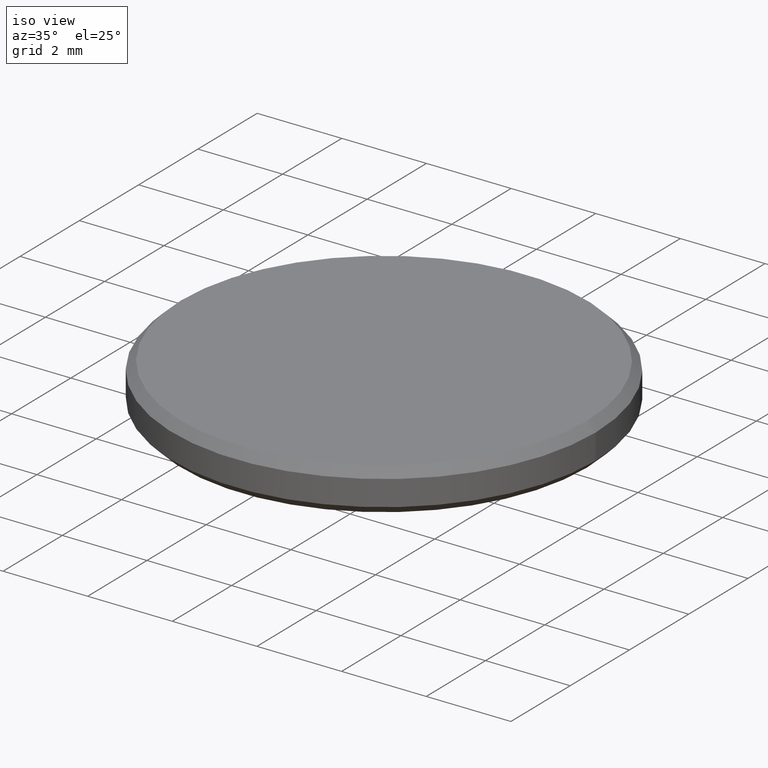
[diagram: clean part render]
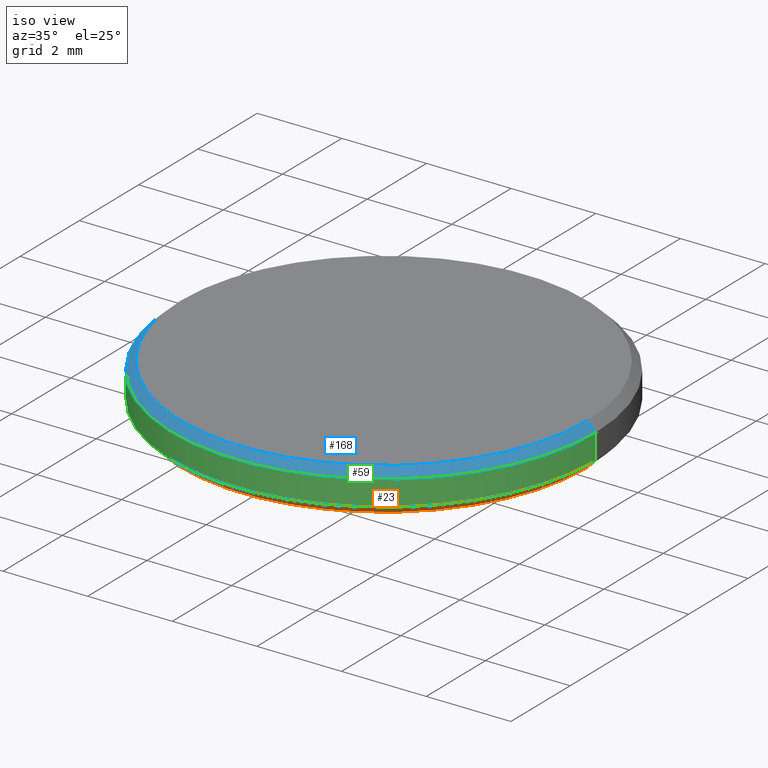
[diagram: same view with three faces highlighted in distinct colors, each labeled with its STEP entity id]
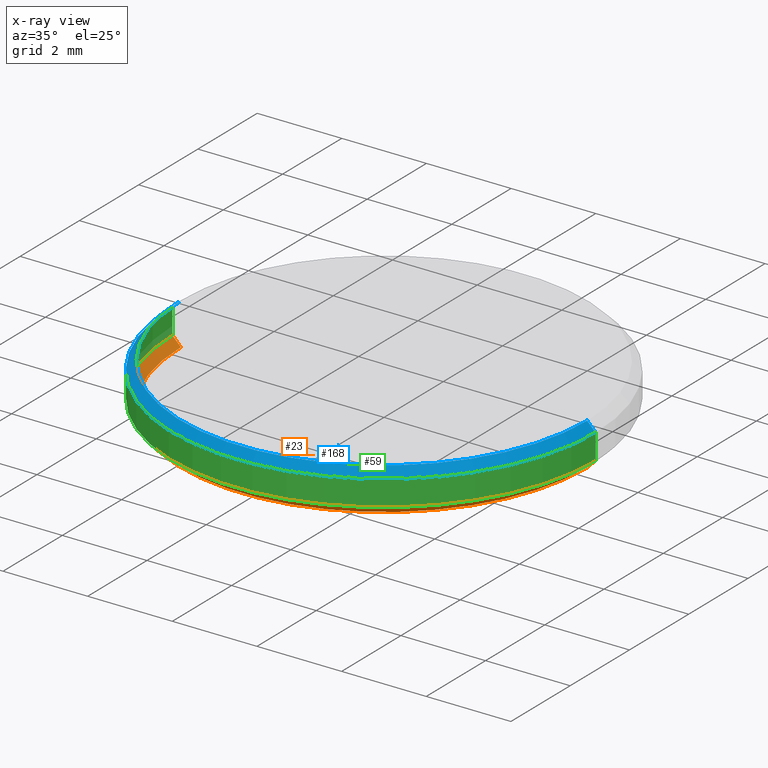
[diagram: x-ray of the same camera — body ghosted, the three highlighted faces saturated]
A machine part, iso view with three faces highlighted in distinct colors.
The next image is the same camera in x-ray (body ghosted, the three faces saturated) — at least one of them is partly hidden behind the body in this view.
Their STEP definitions:

[orange] entity #23 — the highlighted conical surface has half-angle 45 deg.
#1 = VERTEX_POINT ( 'NONE', #119 ) ;
#6 = VERTEX_POINT ( 'NONE', #97 ) ;
#23 = ADVANCED_FACE ( 'NONE', ( #138 ), #40, .T. ) ;
#25 = DIRECTION ( 'NONE',  ( -0.000000000000000000, -0.000000000000000000, 1.000000000000000000 ) ) ;
#26 = AXIS2_PLACEMENT_3D ( 'NONE', #157, #139, #235 ) ;
#36 = ORIENTED_EDGE ( 'NONE', *, *, #135, .F. ) ;
#39 = VECTOR ( 'NONE', #126, 1000.000000000000000 ) ;
#40 = CONICAL_SURFACE ( 'NONE', #116, 5.000000000000000000, 0.7853981633974503884 ) ;
#45 = CARTESIAN_POINT ( 'NONE',  ( 0.000000000000000000, 0.000000000000000000, 0.1999999999999996503 ) ) ;
#46 = CARTESIAN_POINT ( 'NONE',  ( 5.000000000000000000, 0.000000000000000000, 0.1999999999999996503 ) ) ;
#51 = CARTESIAN_POINT ( 'NONE',  ( -5.000000000000000000, 6.123233995736765296E-16, 0.1999999999999996503 ) ) ;
#67 = LINE ( 'NONE', #46, #228 ) ;
#69 = DIRECTION ( 'NONE',  ( 1.000000000000000000, 0.000000000000000000, 0.000000000000000000 ) ) ;
#70 = CIRCLE ( 'NONE', #163, 4.799999999999999822 ) ;
#76 = ORIENTED_EDGE ( 'NONE', *, *, #181, .F. ) ;
#92 = ORIENTED_EDGE ( 'NONE', *, *, #188, .T. ) ;
#94 = EDGE_LOOP ( 'NONE', ( #225, #36, #92, #76 ) ) ;
#97 = CARTESIAN_POINT ( 'NONE',  ( -5.000000000000000000, 0.000000000000000000, 0.1999999999999996503 ) ) ;
#99 = CIRCLE ( 'NONE', #26, 5.000000000000000000 ) ;
#116 = AXIS2_PLACEMENT_3D ( 'NONE', #45, #25, #227 ) ;
#119 = CARTESIAN_POINT ( 'NONE',  ( 4.799999999999999822, 0.000000000000000000, 0.000000000000000000 ) ) ;
#124 = CARTESIAN_POINT ( 'NONE',  ( 0.000000000000000000, 0.000000000000000000, 0.000000000000000000 ) ) ;
#125 = LINE ( 'NONE', #51, #39 ) ;
#126 = DIRECTION ( 'NONE',  ( -0.7071067811865490160, 8.659560562354950115E-17, 0.7071067811865459074 ) ) ;
#135 = EDGE_CURVE ( 'NONE', #1, #204, #70, .T. ) ;
#137 = VERTEX_POINT ( 'NONE', #183 ) ;
#138 = FACE_OUTER_BOUND ( 'NONE', #94, .T. ) ;
#139 = DIRECTION ( 'NONE',  ( -0.000000000000000000, -0.000000000000000000, 1.000000000000000000 ) ) ;
#143 = EDGE_CURVE ( 'NONE', #204, #6, #125, .T. ) ;
#148 = CARTESIAN_POINT ( 'NONE',  ( -4.799999999999999822, 6.000769315822029754E-16, 0.000000000000000000 ) ) ;
#157 = CARTESIAN_POINT ( 'NONE',  ( 0.000000000000000000, 0.000000000000000000, 0.1999999999999996503 ) ) ;
#159 = DIRECTION ( 'NONE',  ( -0.000000000000000000, -0.000000000000000000, -1.000000000000000000 ) ) ;
#163 = AXIS2_PLACEMENT_3D ( 'NONE', #124, #159, #69 ) ;
#181 = EDGE_CURVE ( 'NONE', #6, #137, #99, .T. ) ;
#183 = CARTESIAN_POINT ( 'NONE',  ( 5.000000000000000000, 6.123233995736766282E-16, 0.1999999999999996503 ) ) ;
#188 = EDGE_CURVE ( 'NONE', #1, #137, #67, .T. ) ;
#196 = DIRECTION ( 'NONE',  ( 0.7071067811865490160, 0.000000000000000000, 0.7071067811865459074 ) ) ;
#204 = VERTEX_POINT ( 'NONE', #148 ) ;
#225 = ORIENTED_EDGE ( 'NONE', *, *, #143, .F. ) ;
#227 = DIRECTION ( 'NONE',  ( 1.000000000000000000, 0.000000000000000000, 0.000000000000000000 ) ) ;
#228 = VECTOR ( 'NONE', #196, 1000.000000000000000 ) ;
#235 = DIRECTION ( 'NONE',  ( 1.000000000000000000, 0.000000000000000000, 0.000000000000000000 ) ) ;

[blue] entity #168 — the highlighted conical surface has half-angle 45 deg.
#5 = AXIS2_PLACEMENT_3D ( 'NONE', #37, #19, #239 ) ;
#12 = EDGE_CURVE ( 'NONE', #155, #194, #175, .T. ) ;
#15 = AXIS2_PLACEMENT_3D ( 'NONE', #82, #180, #158 ) ;
#19 = DIRECTION ( 'NONE',  ( 0.000000000000000000, 0.000000000000000000, 1.000000000000000000 ) ) ;
#32 = CARTESIAN_POINT ( 'NONE',  ( 0.000000000000000000, 0.000000000000000000, 1.000000000000000000 ) ) ;
#33 = CARTESIAN_POINT ( 'NONE',  ( 4.800000000000002487, 5.878304635907297169E-16, 1.000000000000000000 ) ) ;
#37 = CARTESIAN_POINT ( 'NONE',  ( 0.000000000000000000, 0.000000000000000000, 1.000000000000000000 ) ) ;
#50 = FACE_OUTER_BOUND ( 'NONE', #206, .T. ) ;
#61 = AXIS2_PLACEMENT_3D ( 'NONE', #32, #236, #199 ) ;
#64 = DIRECTION ( 'NONE',  ( -0.7071067811865460184, 0.000000000000000000, -0.7071067811865489050 ) ) ;
#65 = CARTESIAN_POINT ( 'NONE',  ( -4.800000000000002487, 0.000000000000000000, 1.000000000000000000 ) ) ;
#77 = VECTOR ( 'NONE', #215, 1000.000000000000114 ) ;
#79 = VERTEX_POINT ( 'NONE', #85 ) ;
#82 = CARTESIAN_POINT ( 'NONE',  ( 0.000000000000000000, 0.000000000000000000, 0.8000000000000012657 ) ) ;
#85 = CARTESIAN_POINT ( 'NONE',  ( 5.000000000000000000, 6.123233995736766282E-16, 0.8000000000000012657 ) ) ;
#87 = CONICAL_SURFACE ( 'NONE', #61, 4.800000000000002487, 0.7853981633974461696 ) ;
#89 = CIRCLE ( 'NONE', #15, 5.000000000000000000 ) ;
#110 = VERTEX_POINT ( 'NONE', #141 ) ;
#118 = EDGE_CURVE ( 'NONE', #79, #194, #89, .T. ) ;
#121 = LINE ( 'NONE', #33, #77 ) ;
#141 = CARTESIAN_POINT ( 'NONE',  ( 4.800000000000002487, 6.000769315822031726E-16, 1.000000000000000000 ) ) ;
#145 = EDGE_CURVE ( 'NONE', #110, #79, #121, .T. ) ;
#155 = VERTEX_POINT ( 'NONE', #65 ) ;
#158 = DIRECTION ( 'NONE',  ( 1.000000000000000000, 0.000000000000000000, 0.000000000000000000 ) ) ;
#168 = ADVANCED_FACE ( 'NONE', ( #50 ), #87, .T. ) ;
#170 = ORIENTED_EDGE ( 'NONE', *, *, #118, .F. ) ;
#173 = ORIENTED_EDGE ( 'NONE', *, *, #145, .F. ) ;
#175 = LINE ( 'NONE', #232, #219 ) ;
#177 = ORIENTED_EDGE ( 'NONE', *, *, #12, .T. ) ;
#180 = DIRECTION ( 'NONE',  ( 0.000000000000000000, 0.000000000000000000, -1.000000000000000000 ) ) ;
#194 = VERTEX_POINT ( 'NONE', #198 ) ;
#198 = CARTESIAN_POINT ( 'NONE',  ( -5.000000000000000000, 0.000000000000000000, 0.8000000000000012657 ) ) ;
#199 = DIRECTION ( 'NONE',  ( -1.000000000000000000, 0.000000000000000000, 0.000000000000000000 ) ) ;
#206 = EDGE_LOOP ( 'NONE', ( #173, #207, #177, #170 ) ) ;
#207 = ORIENTED_EDGE ( 'NONE', *, *, #231, .F. ) ;
#215 = DIRECTION ( 'NONE',  ( 0.7071067811865460184, 8.659560562354913137E-17, -0.7071067811865489050 ) ) ;
#217 = CIRCLE ( 'NONE', #5, 4.800000000000002487 ) ;
#219 = VECTOR ( 'NONE', #64, 1000.000000000000114 ) ;
#231 = EDGE_CURVE ( 'NONE', #155, #110, #217, .T. ) ;
#232 = CARTESIAN_POINT ( 'NONE',  ( -4.800000000000002487, 0.000000000000000000, 1.000000000000000000 ) ) ;
#236 = DIRECTION ( 'NONE',  ( 0.000000000000000000, 0.000000000000000000, -1.000000000000000000 ) ) ;
#239 = DIRECTION ( 'NONE',  ( 1.000000000000000000, 0.000000000000000000, 0.000000000000000000 ) ) ;

[green] entity #59 — the highlighted cylindrical surface (partial cylindrical patch) has radius 5 mm, axis along (-0, -0, -1).
#6 = VERTEX_POINT ( 'NONE', #97 ) ;
#10 = FACE_OUTER_BOUND ( 'NONE', #149, .T. ) ;
#15 = AXIS2_PLACEMENT_3D ( 'NONE', #82, #180, #158 ) ;
#26 = AXIS2_PLACEMENT_3D ( 'NONE', #157, #139, #235 ) ;
#30 = DIRECTION ( 'NONE',  ( -0.000000000000000000, -0.000000000000000000, -1.000000000000000000 ) ) ;
#49 = EDGE_CURVE ( 'NONE', #194, #6, #154, .T. ) ;
#56 = ORIENTED_EDGE ( 'NONE', *, *, #49, .T. ) ;
#59 = ADVANCED_FACE ( 'NONE', ( #10 ), #86, .T. ) ;
#66 = CARTESIAN_POINT ( 'NONE',  ( 0.000000000000000000, 0.000000000000000000, 1.000000000000000000 ) ) ;
#79 = VERTEX_POINT ( 'NONE', #85 ) ;
#82 = CARTESIAN_POINT ( 'NONE',  ( 0.000000000000000000, 0.000000000000000000, 0.8000000000000012657 ) ) ;
#85 = CARTESIAN_POINT ( 'NONE',  ( 5.000000000000000000, 6.123233995736766282E-16, 0.8000000000000012657 ) ) ;
#86 = CYLINDRICAL_SURFACE ( 'NONE', #179, 5.000000000000000000 ) ;
#89 = CIRCLE ( 'NONE', #15, 5.000000000000000000 ) ;
#93 = CARTESIAN_POINT ( 'NONE',  ( -5.000000000000000000, 0.000000000000000000, 1.000000000000000000 ) ) ;
#97 = CARTESIAN_POINT ( 'NONE',  ( -5.000000000000000000, 0.000000000000000000, 0.1999999999999996503 ) ) ;
#99 = CIRCLE ( 'NONE', #26, 5.000000000000000000 ) ;
#106 = ORIENTED_EDGE ( 'NONE', *, *, #118, .T. ) ;
#114 = CARTESIAN_POINT ( 'NONE',  ( 5.000000000000000000, 6.123233995736766282E-16, 1.000000000000000000 ) ) ;
#118 = EDGE_CURVE ( 'NONE', #79, #194, #89, .T. ) ;
#123 = DIRECTION ( 'NONE',  ( -1.000000000000000000, 0.000000000000000000, 0.000000000000000000 ) ) ;
#129 = ORIENTED_EDGE ( 'NONE', *, *, #224, .F. ) ;
#134 = DIRECTION ( 'NONE',  ( -0.000000000000000000, -0.000000000000000000, -1.000000000000000000 ) ) ;
#137 = VERTEX_POINT ( 'NONE', #183 ) ;
#139 = DIRECTION ( 'NONE',  ( -0.000000000000000000, -0.000000000000000000, 1.000000000000000000 ) ) ;
#149 = EDGE_LOOP ( 'NONE', ( #129, #106, #56, #230 ) ) ;
#151 = VECTOR ( 'NONE', #220, 1000.000000000000000 ) ;
#154 = LINE ( 'NONE', #93, #156 ) ;
#156 = VECTOR ( 'NONE', #134, 1000.000000000000000 ) ;
#157 = CARTESIAN_POINT ( 'NONE',  ( 0.000000000000000000, 0.000000000000000000, 0.1999999999999996503 ) ) ;
#158 = DIRECTION ( 'NONE',  ( 1.000000000000000000, 0.000000000000000000, 0.000000000000000000 ) ) ;
#179 = AXIS2_PLACEMENT_3D ( 'NONE', #66, #30, #123 ) ;
#180 = DIRECTION ( 'NONE',  ( 0.000000000000000000, 0.000000000000000000, -1.000000000000000000 ) ) ;
#181 = EDGE_CURVE ( 'NONE', #6, #137, #99, .T. ) ;
#183 = CARTESIAN_POINT ( 'NONE',  ( 5.000000000000000000, 6.123233995736766282E-16, 0.1999999999999996503 ) ) ;
#194 = VERTEX_POINT ( 'NONE', #198 ) ;
#198 = CARTESIAN_POINT ( 'NONE',  ( -5.000000000000000000, 0.000000000000000000, 0.8000000000000012657 ) ) ;
#200 = LINE ( 'NONE', #114, #151 ) ;
#220 = DIRECTION ( 'NONE',  ( -0.000000000000000000, -0.000000000000000000, -1.000000000000000000 ) ) ;
#224 = EDGE_CURVE ( 'NONE', #79, #137, #200, .T. ) ;
#230 = ORIENTED_EDGE ( 'NONE', *, *, #181, .T. ) ;
#235 = DIRECTION ( 'NONE',  ( 1.000000000000000000, 0.000000000000000000, 0.000000000000000000 ) ) ;